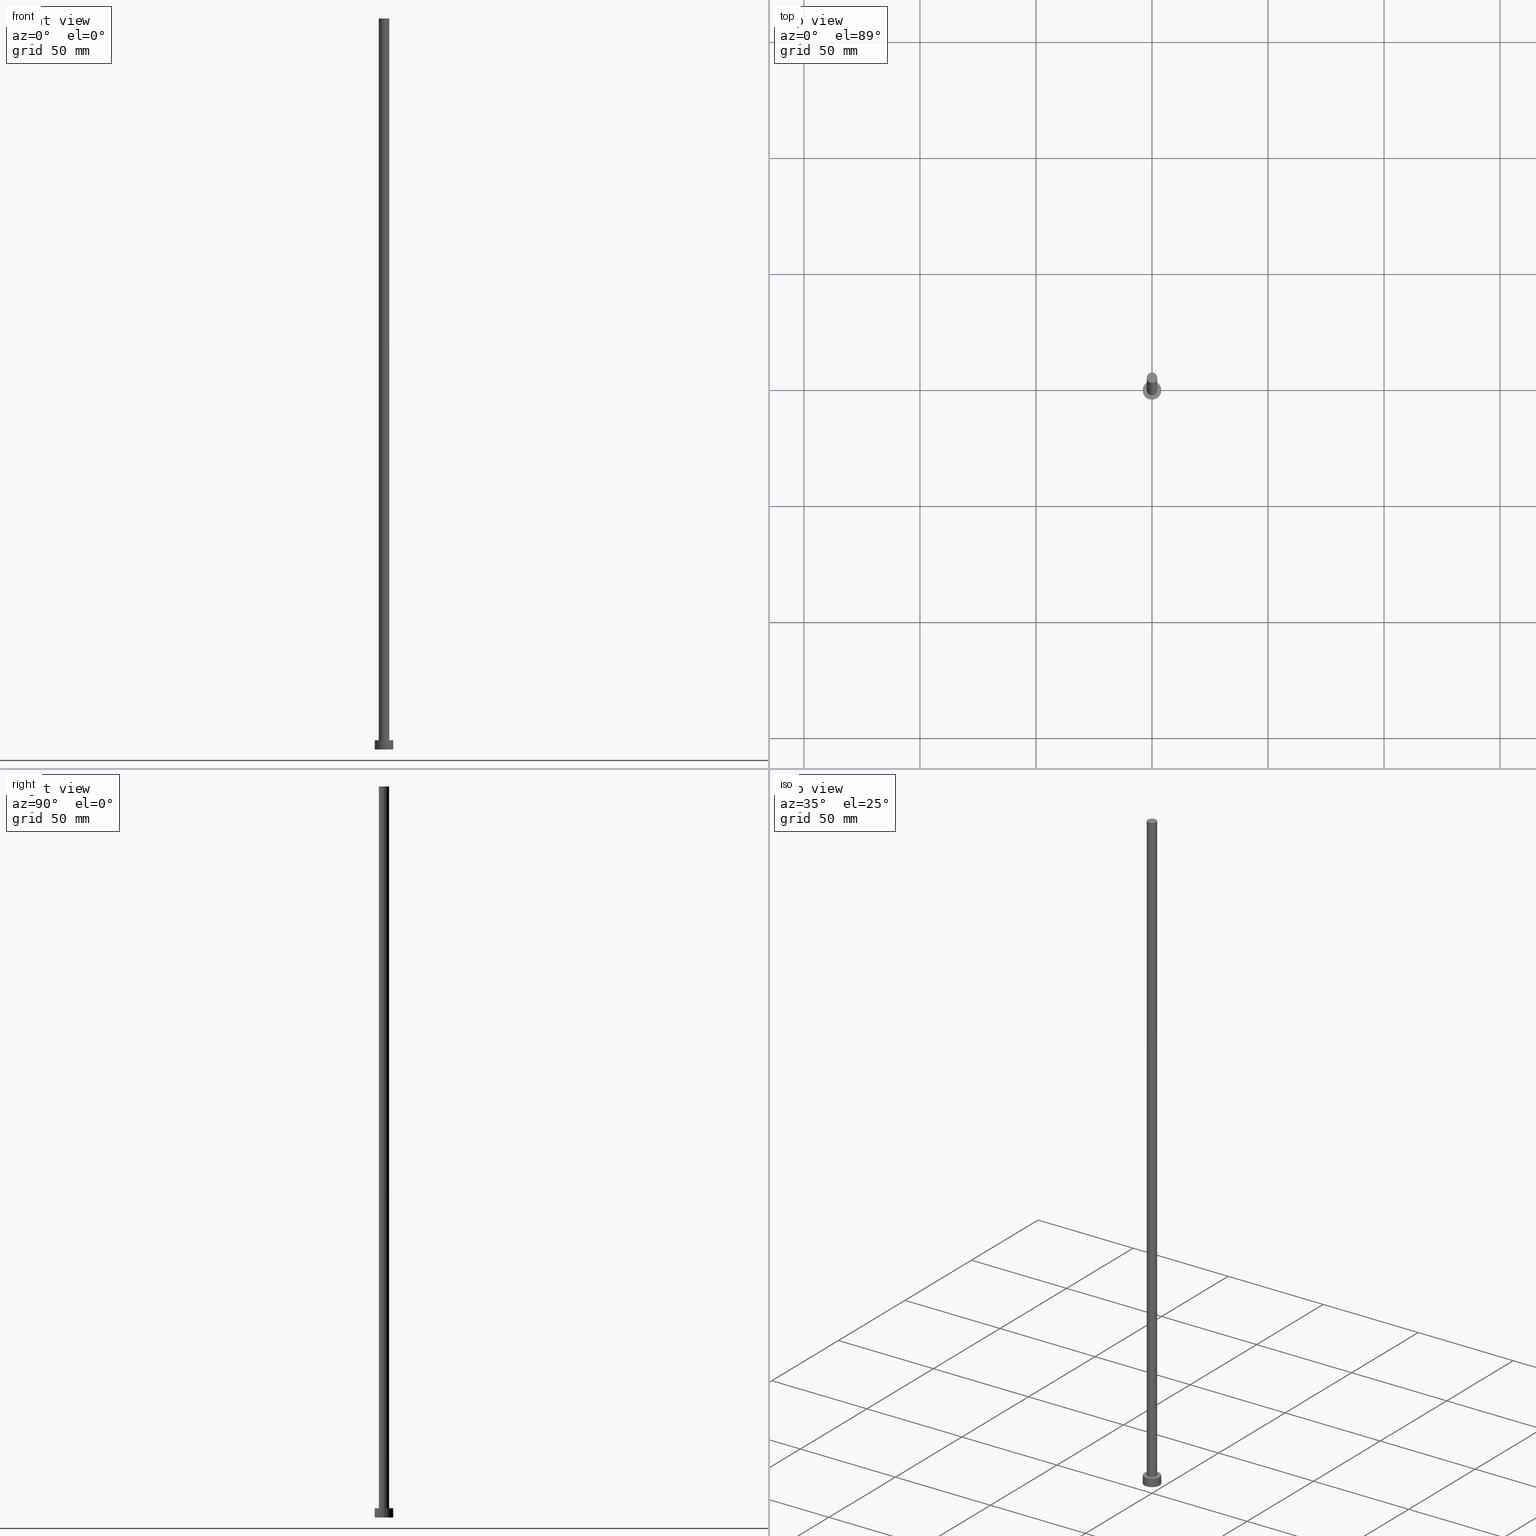
[diagram: canonical four-view strip — front | top / right | iso, engineering-drawing reading convention]
A machine part, canonical four-view strip (front | top / right | iso — engineering-drawing reading convention). The complete STEP part file that produces these views, byte-faithful:
ISO-10303-21;
HEADER;
FILE_DESCRIPTION (( 'STEP AP203' ),
    '1' );
FILE_NAME ('d04b.STEP',
    '2023-02-13T16:20:07',
    ( '' ),
    ( '' ),
    'SwSTEP 2.0',
    'SolidWorks 2019',
    '' );
FILE_SCHEMA (( 'CONFIG_CONTROL_DESIGN' ));
ENDSEC;

DATA;
#1 = CYLINDRICAL_SURFACE ( 'NONE', #97, 4.000000000000000000 ) ;
#2 = DIRECTION ( 'NONE',  ( -0.000000000000000000, -0.000000000000000000, -1.000000000000000000 ) ) ;
#3 = CARTESIAN_POINT ( 'NONE',  ( 0.000000000000000000, 0.000000000000000000, 315.0000000000000000 ) ) ;
#4 = CARTESIAN_POINT ( 'NONE',  ( 4.000000000000000000, 4.898587196589412829E-16, 0.000000000000000000 ) ) ;
#5 = ORIENTED_EDGE ( 'NONE', *, *, #90, .T. ) ;
#6 = AXIS2_PLACEMENT_3D ( 'NONE', #214, #141, #41 ) ;
#7 = AXIS2_PLACEMENT_3D ( 'NONE', #65, #143, #218 ) ;
#8 = LOCAL_TIME ( 17, 20, 7.000000000000000000, #30 ) ;
#9 = PERSON_AND_ORGANIZATION ( #124, #189 ) ;
#10 = APPLICATION_CONTEXT ( 'configuration controlled 3d designs of mechanical parts and assemblies' ) ;
#11 = AXIS2_PLACEMENT_3D ( 'NONE', #33, #223, #221 ) ;
#12 = VECTOR ( 'NONE', #82, 1000.000000000000000 ) ;
#13 = CALENDAR_DATE ( 2023, 13, 2 ) ;
#14 = DIRECTION ( 'NONE',  ( -1.000000000000000000, 0.000000000000000000, 0.000000000000000000 ) ) ;
#15 =( NAMED_UNIT ( * ) PLANE_ANGLE_UNIT ( ) SI_UNIT ( $, .RADIAN. ) );
#16 = DIRECTION ( 'NONE',  ( -1.000000000000000000, 0.000000000000000000, 0.000000000000000000 ) ) ;
#17 = CARTESIAN_POINT ( 'NONE',  ( 0.000000000000000000, 0.000000000000000000, 4.000000000000000000 ) ) ;
#18 = VERTEX_POINT ( 'NONE', #176 ) ;
#19 = CYLINDRICAL_SURFACE ( 'NONE', #190, 2.250000000000000000 ) ;
#20 = PRODUCT_DEFINITION ( 'NEZN�M�', '', #252, #247 ) ;
#21 = EDGE_LOOP ( 'NONE', ( #248, #79, #68, #164 ) ) ;
#22 = DIRECTION ( 'NONE',  ( 1.000000000000000000, 0.000000000000000000, 0.000000000000000000 ) ) ;
#23 = APPROVAL_PERSON_ORGANIZATION ( #191, #87, #206 ) ;
#24 = LINE ( 'NONE', #84, #155 ) ;
#25 = CARTESIAN_POINT ( 'NONE',  ( 0.000000000000000000, 0.000000000000000000, 0.000000000000000000 ) ) ;
#26 = VECTOR ( 'NONE', #93, 1000.000000000000000 ) ;
#27 = DATE_AND_TIME ( #13, #202 ) ;
#28 = ADVANCED_FACE ( 'NONE', ( #51 ), #128, .T. ) ;
#29 = PERSON_AND_ORGANIZATION ( #124, #189 ) ;
#30 = COORDINATED_UNIVERSAL_TIME_OFFSET ( 1, 0, .AHEAD. ) ;
#31 = CARTESIAN_POINT ( 'NONE',  ( 0.000000000000000000, 0.000000000000000000, 315.0000000000000000 ) ) ;
#32 = ADVANCED_FACE ( 'NONE', ( #130 ), #34, .T. ) ;
#33 = CARTESIAN_POINT ( 'NONE',  ( 0.000000000000000000, 0.000000000000000000, 0.000000000000000000 ) ) ;
#34 = PLANE ( 'NONE',  #193 ) ;
#35 = DATE_AND_TIME ( #242, #8 ) ;
#36 = ADVANCED_FACE ( 'NONE', ( #108 ), #192, .T. ) ;
#37 = VERTEX_POINT ( 'NONE', #230 ) ;
#38 = DIRECTION ( 'NONE',  ( 1.000000000000000000, 0.000000000000000000, -0.000000000000000000 ) ) ;
#39 = ORIENTED_EDGE ( 'NONE', *, *, #56, .F. ) ;
#40 = CIRCLE ( 'NONE', #74, 4.000000000000000000 ) ;
#41 = DIRECTION ( 'NONE',  ( 1.000000000000000000, 0.000000000000000000, -0.000000000000000000 ) ) ;
#42 = CARTESIAN_POINT ( 'NONE',  ( -4.000000000000000000, 0.000000000000000000, 0.000000000000000000 ) ) ;
#43 = EDGE_CURVE ( 'NONE', #209, #37, #168, .T. ) ;
#44 = PRODUCT_DEFINITION_SHAPE ( 'NONE', 'NONE',  #20 ) ;
#45 = CC_DESIGN_PERSON_AND_ORGANIZATION_ASSIGNMENT ( #109, #146, ( #94 ) ) ;
#46 = ORIENTED_EDGE ( 'NONE', *, *, #91, .F. ) ;
#47 = DIRECTION ( 'NONE',  ( 1.000000000000000000, 0.000000000000000000, 0.000000000000000000 ) ) ;
#48 = CC_DESIGN_DATE_AND_TIME_ASSIGNMENT ( #49, #203, ( #137 ) ) ;
#49 = DATE_AND_TIME ( #50, #233 ) ;
#50 = CALENDAR_DATE ( 2023, 13, 2 ) ;
#51 = FACE_OUTER_BOUND ( 'NONE', #177, .T. ) ;
#52 = APPROVAL_ROLE ( '' ) ;
#53 = CC_DESIGN_PERSON_AND_ORGANIZATION_ASSIGNMENT ( #9, #243, ( #252 ) ) ;
#54 = EDGE_LOOP ( 'NONE', ( #174, #39 ) ) ;
#55 = COORDINATED_UNIVERSAL_TIME_OFFSET ( 1, 0, .AHEAD. ) ;
#56 = EDGE_CURVE ( 'NONE', #255, #37, #162, .T. ) ;
#57 = APPROVAL_DATE_TIME ( #59, #210 ) ;
#58 = AXIS2_PLACEMENT_3D ( 'NONE', #178, #123, #81 ) ;
#59 = DATE_AND_TIME ( #111, #121 ) ;
#60 = CARTESIAN_POINT ( 'NONE',  ( -2.250000000000000000, 0.000000000000000000, 315.0000000000000000 ) ) ;
#61 = LOCAL_TIME ( 17, 20, 7.000000000000000000, #129 ) ;
#62 = DIRECTION ( 'NONE',  ( 0.000000000000000000, 0.000000000000000000, 1.000000000000000000 ) ) ;
#63 = AXIS2_PLACEMENT_3D ( 'NONE', #3, #201, #47 ) ;
#64 = DIRECTION ( 'NONE',  ( 1.000000000000000000, 0.000000000000000000, 0.000000000000000000 ) ) ;
#65 = CARTESIAN_POINT ( 'NONE',  ( 0.000000000000000000, 0.000000000000000000, 4.000000000000000000 ) ) ;
#66 = VERTEX_POINT ( 'NONE', #244 ) ;
#67 = CARTESIAN_POINT ( 'NONE',  ( 2.250000000000000000, 2.755455298081544285E-16, 315.0000000000000000 ) ) ;
#68 = ORIENTED_EDGE ( 'NONE', *, *, #43, .T. ) ;
#69 =( LENGTH_UNIT ( ) NAMED_UNIT ( * ) SI_UNIT ( .MILLI., .METRE. ) );
#70 = ORIENTED_EDGE ( 'NONE', *, *, #56, .T. ) ;
#71 = PERSON_AND_ORGANIZATION_ROLE ( 'classification_officer' ) ;
#72 = APPROVAL_ROLE ( '' ) ;
#73 = LINE ( 'NONE', #67, #12 ) ;
#74 = AXIS2_PLACEMENT_3D ( 'NONE', #196, #215, #213 ) ;
#75 = EDGE_CURVE ( 'NONE', #66, #255, #73, .T. ) ;
#76 = ADVANCED_FACE ( 'NONE', ( #163 ), #19, .T. ) ;
#77 = EDGE_LOOP ( 'NONE', ( #98, #80 ) ) ;
#78 = AXIS2_PLACEMENT_3D ( 'NONE', #99, #199, #22 ) ;
#79 = ORIENTED_EDGE ( 'NONE', *, *, #90, .F. ) ;
#80 = ORIENTED_EDGE ( 'NONE', *, *, #207, .T. ) ;
#81 = DIRECTION ( 'NONE',  ( 1.000000000000000000, 0.000000000000000000, 0.000000000000000000 ) ) ;
#82 = DIRECTION ( 'NONE',  ( -0.000000000000000000, -0.000000000000000000, -1.000000000000000000 ) ) ;
#83 = CARTESIAN_POINT ( 'NONE',  ( 0.000000000000000000, 0.000000000000000000, 4.000000000000000000 ) ) ;
#84 = CARTESIAN_POINT ( 'NONE',  ( 4.000000000000000000, 4.898587196589412829E-16, 4.000000000000000000 ) ) ;
#85 = ORIENTED_EDGE ( 'NONE', *, *, #240, .F. ) ;
#86 = APPROVAL_DATE_TIME ( #35, #87 ) ;
#87 = APPROVAL ( #224, 'NEUR�EN�' ) ;
#88 = PERSON_AND_ORGANIZATION ( #124, #189 ) ;
#89 = DATE_AND_TIME ( #131, #61 ) ;
#90 = EDGE_CURVE ( 'NONE', #209, #66, #225, .T. ) ;
#91 = EDGE_CURVE ( 'NONE', #115, #216, #24, .T. ) ;
#92 = UNCERTAINTY_MEASURE_WITH_UNIT (LENGTH_MEASURE( 1.000000000000000082E-05 ), #69, 'distance_accuracy_value', 'NONE');
#93 = DIRECTION ( 'NONE',  ( -0.000000000000000000, -0.000000000000000000, -1.000000000000000000 ) ) ;
#94 = PRODUCT ( 'd04b', 'd04b', '', ( #110 ) ) ;
#95 = ADVANCED_FACE ( 'NONE', ( #116, #184 ), #234, .T. ) ;
#96 = EDGE_LOOP ( 'NONE', ( #5, #134 ) ) ;
#97 = AXIS2_PLACEMENT_3D ( 'NONE', #158, #2, #103 ) ;
#98 = ORIENTED_EDGE ( 'NONE', *, *, #136, .T. ) ;
#99 = CARTESIAN_POINT ( 'NONE',  ( 0.000000000000000000, 0.000000000000000000, 0.000000000000000000 ) ) ;
#100 = EDGE_CURVE ( 'NONE', #117, #216, #40, .T. ) ;
#101 = CIRCLE ( 'NONE', #251, 4.000000000000000000 ) ;
#102 = DIRECTION ( 'NONE',  ( 1.000000000000000000, 0.000000000000000000, 0.000000000000000000 ) ) ;
#103 = DIRECTION ( 'NONE',  ( -1.000000000000000000, 0.000000000000000000, 0.000000000000000000 ) ) ;
#104 = CARTESIAN_POINT ( 'NONE',  ( 0.000000000000000000, 0.000000000000000000, 315.0000000000000000 ) ) ;
#105 =( GEOMETRIC_REPRESENTATION_CONTEXT ( 3 ) GLOBAL_UNCERTAINTY_ASSIGNED_CONTEXT ( ( #92 ) ) GLOBAL_UNIT_ASSIGNED_CONTEXT ( ( #69, #15, #222 ) ) REPRESENTATION_CONTEXT ( 'NONE', 'WORKASPACE' ) );
#106 = APPLICATION_PROTOCOL_DEFINITION ( 'international standard', 'config_control_design', 1994, #10 ) ;
#107 = PERSON_AND_ORGANIZATION_ROLE ( 'creator' ) ;
#108 = FACE_OUTER_BOUND ( 'NONE', #219, .T. ) ;
#109 = PERSON_AND_ORGANIZATION ( #124, #189 ) ;
#110 = MECHANICAL_CONTEXT ( 'NONE', #10, 'mechanical' ) ;
#111 = CALENDAR_DATE ( 2023, 13, 2 ) ;
#112 = ORIENTED_EDGE ( 'NONE', *, *, #126, .F. ) ;
#113 = CARTESIAN_POINT ( 'NONE',  ( 0.000000000000000000, 0.000000000000000000, 4.000000000000000000 ) ) ;
#114 = AXIS2_PLACEMENT_3D ( 'NONE', #160, #182, #64 ) ;
#115 = VERTEX_POINT ( 'NONE', #232 ) ;
#116 = FACE_BOUND ( 'NONE', #54, .T. ) ;
#117 = VERTEX_POINT ( 'NONE', #42 ) ;
#118 = VECTOR ( 'NONE', #140, 1000.000000000000000 ) ;
#119 = DIRECTION ( 'NONE',  ( -1.000000000000000000, 0.000000000000000000, 0.000000000000000000 ) ) ;
#120 = AXIS2_PLACEMENT_3D ( 'NONE', #113, #171, #135 ) ;
#121 = LOCAL_TIME ( 17, 20, 7.000000000000000000, #55 ) ;
#122 = CARTESIAN_POINT ( 'NONE',  ( 2.250000000000000000, 2.755455298081544285E-16, 4.000000000000000000 ) ) ;
#123 = DIRECTION ( 'NONE',  ( 0.000000000000000000, 0.000000000000000000, 1.000000000000000000 ) ) ;
#124 = PERSON ( 'NEUR�EN�', 'NEUR�EN�', 'NEUR�EN�', ('NEUR�EN�'), ('NEUR�EN�'), ('NEUR�EN�') ) ;
#125 = PERSON_AND_ORGANIZATION ( #124, #189 ) ;
#126 = EDGE_CURVE ( 'NONE', #216, #117, #246, .T. ) ;
#127 = APPROVAL_DATE_TIME ( #89, #139 ) ;
#128 = CYLINDRICAL_SURFACE ( 'NONE', #217, 4.000000000000000000 ) ;
#129 = COORDINATED_UNIVERSAL_TIME_OFFSET ( 1, 0, .AHEAD. ) ;
#130 = FACE_OUTER_BOUND ( 'NONE', #96, .T. ) ;
#131 = CALENDAR_DATE ( 2023, 13, 2 ) ;
#132 = SHAPE_DEFINITION_REPRESENTATION ( #44, #208 ) ;
#133 = CC_DESIGN_APPROVAL ( #139, ( #20 ) ) ;
#134 = ORIENTED_EDGE ( 'NONE', *, *, #144, .T. ) ;
#135 = DIRECTION ( 'NONE',  ( 1.000000000000000000, 0.000000000000000000, 0.000000000000000000 ) ) ;
#136 = EDGE_CURVE ( 'NONE', #18, #115, #101, .T. ) ;
#137 = SECURITY_CLASSIFICATION ( '', '', #167 ) ;
#138 = DIRECTION ( 'NONE',  ( 0.000000000000000000, 0.000000000000000000, 1.000000000000000000 ) ) ;
#139 = APPROVAL ( #239, 'NEUR�EN�' ) ;
#140 = DIRECTION ( 'NONE',  ( -0.000000000000000000, -0.000000000000000000, -1.000000000000000000 ) ) ;
#141 = DIRECTION ( 'NONE',  ( 0.000000000000000000, 0.000000000000000000, 1.000000000000000000 ) ) ;
#142 = CIRCLE ( 'NONE', #58, 2.250000000000000000 ) ;
#143 = DIRECTION ( 'NONE',  ( 0.000000000000000000, 0.000000000000000000, 1.000000000000000000 ) ) ;
#144 = EDGE_CURVE ( 'NONE', #66, #209, #142, .T. ) ;
#145 = LINE ( 'NONE', #235, #118 ) ;
#146 = PERSON_AND_ORGANIZATION_ROLE ( 'design_owner' ) ;
#147 = ORIENTED_EDGE ( 'NONE', *, *, #100, .T. ) ;
#148 = COORDINATED_UNIVERSAL_TIME_OFFSET ( 1, 0, .AHEAD. ) ;
#149 = APPLICATION_CONTEXT ( 'configuration controlled 3d designs of mechanical parts and assemblies' ) ;
#150 = ORIENTED_EDGE ( 'NONE', *, *, #43, .F. ) ;
#151 = ORIENTED_EDGE ( 'NONE', *, *, #240, .T. ) ;
#152 = CIRCLE ( 'NONE', #7, 2.250000000000000000 ) ;
#153 = CC_DESIGN_APPROVAL ( #87, ( #252 ) ) ;
#154 = EDGE_LOOP ( 'NONE', ( #238, #112 ) ) ;
#155 = VECTOR ( 'NONE', #237, 1000.000000000000000 ) ;
#156 = DIRECTION ( 'NONE',  ( 0.000000000000000000, 0.000000000000000000, 1.000000000000000000 ) ) ;
#157 = DIRECTION ( 'NONE',  ( -0.000000000000000000, -0.000000000000000000, -1.000000000000000000 ) ) ;
#158 = CARTESIAN_POINT ( 'NONE',  ( 0.000000000000000000, 0.000000000000000000, 4.000000000000000000 ) ) ;
#159 = CC_DESIGN_SECURITY_CLASSIFICATION ( #137, ( #252 ) ) ;
#160 = CARTESIAN_POINT ( 'NONE',  ( 0.000000000000000000, 0.000000000000000000, 4.000000000000000000 ) ) ;
#161 = CARTESIAN_POINT ( 'NONE',  ( -2.250000000000000000, 0.000000000000000000, 315.0000000000000000 ) ) ;
#162 = CIRCLE ( 'NONE', #120, 2.250000000000000000 ) ;
#163 = FACE_OUTER_BOUND ( 'NONE', #21, .T. ) ;
#164 = ORIENTED_EDGE ( 'NONE', *, *, #249, .T. ) ;
#165 = ORIENTED_EDGE ( 'NONE', *, *, #75, .T. ) ;
#166 = PERSON_AND_ORGANIZATION ( #124, #189 ) ;
#167 = SECURITY_CLASSIFICATION_LEVEL ( 'unclassified' ) ;
#168 = LINE ( 'NONE', #60, #26 ) ;
#169 = APPLICATION_PROTOCOL_DEFINITION ( 'international standard', 'config_control_design', 1994, #149 ) ;
#170 = CC_DESIGN_PERSON_AND_ORGANIZATION_ASSIGNMENT ( #125, #107, ( #20 ) ) ;
#171 = DIRECTION ( 'NONE',  ( 0.000000000000000000, 0.000000000000000000, 1.000000000000000000 ) ) ;
#172 = ADVANCED_FACE ( 'NONE', ( #181 ), #1, .T. ) ;
#173 = ADVANCED_FACE ( 'NONE', ( #200 ), #236, .F. ) ;
#174 = ORIENTED_EDGE ( 'NONE', *, *, #249, .F. ) ;
#175 = AXIS2_PLACEMENT_3D ( 'NONE', #25, #138, #183 ) ;
#176 = CARTESIAN_POINT ( 'NONE',  ( -4.000000000000000000, 0.000000000000000000, 4.000000000000000000 ) ) ;
#177 = EDGE_LOOP ( 'NONE', ( #46, #254, #151, #147 ) ) ;
#178 = CARTESIAN_POINT ( 'NONE',  ( 0.000000000000000000, 0.000000000000000000, 315.0000000000000000 ) ) ;
#179 = CLOSED_SHELL ( 'NONE', ( #36, #172, #28, #95, #173, #76, #32 ) ) ;
#180 = CC_DESIGN_APPROVAL ( #210, ( #137 ) ) ;
#181 = FACE_OUTER_BOUND ( 'NONE', #197, .T. ) ;
#182 = DIRECTION ( 'NONE',  ( 0.000000000000000000, 0.000000000000000000, 1.000000000000000000 ) ) ;
#183 = DIRECTION ( 'NONE',  ( 1.000000000000000000, 0.000000000000000000, -0.000000000000000000 ) ) ;
#184 = FACE_OUTER_BOUND ( 'NONE', #77, .T. ) ;
#185 = PERSON_AND_ORGANIZATION_ROLE ( 'creator' ) ;
#186 = APPROVAL_STATUS ( 'not_yet_approved' ) ;
#187 = MANIFOLD_SOLID_BREP ( 'P�idat vysunut�m3', #179 ) ;
#188 = DATE_TIME_ROLE ( 'creation_date' ) ;
#189 = ORGANIZATION ( 'NEUR�EN�', 'NEUR�EN�', '' ) ;
#190 = AXIS2_PLACEMENT_3D ( 'NONE', #104, #198, #119 ) ;
#191 = PERSON_AND_ORGANIZATION ( #124, #189 ) ;
#192 = CYLINDRICAL_SURFACE ( 'NONE', #229, 2.250000000000000000 ) ;
#193 = AXIS2_PLACEMENT_3D ( 'NONE', #31, #156, #38 ) ;
#194 = PRODUCT_RELATED_PRODUCT_CATEGORY ( 'detail', '', ( #94 ) ) ;
#195 = ORIENTED_EDGE ( 'NONE', *, *, #144, .F. ) ;
#196 = CARTESIAN_POINT ( 'NONE',  ( 0.000000000000000000, 0.000000000000000000, 0.000000000000000000 ) ) ;
#197 = EDGE_LOOP ( 'NONE', ( #211, #250, #205, #85 ) ) ;
#198 = DIRECTION ( 'NONE',  ( -0.000000000000000000, -0.000000000000000000, -1.000000000000000000 ) ) ;
#199 = DIRECTION ( 'NONE',  ( 0.000000000000000000, 0.000000000000000000, 1.000000000000000000 ) ) ;
#200 = FACE_OUTER_BOUND ( 'NONE', #154, .T. ) ;
#201 = DIRECTION ( 'NONE',  ( 0.000000000000000000, 0.000000000000000000, 1.000000000000000000 ) ) ;
#202 = LOCAL_TIME ( 17, 20, 7.000000000000000000, #204 ) ;
#203 = DATE_TIME_ROLE ( 'classification_date' ) ;
#204 = COORDINATED_UNIVERSAL_TIME_OFFSET ( 1, 0, .AHEAD. ) ;
#205 = ORIENTED_EDGE ( 'NONE', *, *, #126, .T. ) ;
#206 = APPROVAL_ROLE ( '' ) ;
#207 = EDGE_CURVE ( 'NONE', #115, #18, #226, .T. ) ;
#208 = ADVANCED_BREP_SHAPE_REPRESENTATION ( 'd04b', ( #187, #11 ), #105 ) ;
#209 = VERTEX_POINT ( 'NONE', #161 ) ;
#210 = APPROVAL ( #186, 'NEUR�EN�' ) ;
#211 = ORIENTED_EDGE ( 'NONE', *, *, #207, .F. ) ;
#212 = APPROVAL_PERSON_ORGANIZATION ( #29, #210, #72 ) ;
#213 = DIRECTION ( 'NONE',  ( 1.000000000000000000, 0.000000000000000000, 0.000000000000000000 ) ) ;
#214 = CARTESIAN_POINT ( 'NONE',  ( 0.000000000000000000, 0.000000000000000000, 4.000000000000000000 ) ) ;
#215 = DIRECTION ( 'NONE',  ( 0.000000000000000000, 0.000000000000000000, 1.000000000000000000 ) ) ;
#216 = VERTEX_POINT ( 'NONE', #4 ) ;
#217 = AXIS2_PLACEMENT_3D ( 'NONE', #17, #157, #16 ) ;
#218 = DIRECTION ( 'NONE',  ( 1.000000000000000000, 0.000000000000000000, 0.000000000000000000 ) ) ;
#219 = EDGE_LOOP ( 'NONE', ( #195, #165, #70, #150 ) ) ;
#220 = CC_DESIGN_PERSON_AND_ORGANIZATION_ASSIGNMENT ( #166, #185, ( #252 ) ) ;
#221 = DIRECTION ( 'NONE',  ( 1.000000000000000000, 0.000000000000000000, 0.000000000000000000 ) ) ;
#222 =( NAMED_UNIT ( * ) SI_UNIT ( $, .STERADIAN. ) SOLID_ANGLE_UNIT ( ) );
#223 = DIRECTION ( 'NONE',  ( 0.000000000000000000, 0.000000000000000000, 1.000000000000000000 ) ) ;
#224 = APPROVAL_STATUS ( 'not_yet_approved' ) ;
#225 = CIRCLE ( 'NONE', #63, 2.250000000000000000 ) ;
#226 = CIRCLE ( 'NONE', #114, 4.000000000000000000 ) ;
#227 = CC_DESIGN_PERSON_AND_ORGANIZATION_ASSIGNMENT ( #88, #71, ( #137 ) ) ;
#228 = DIRECTION ( 'NONE',  ( -0.000000000000000000, -0.000000000000000000, -1.000000000000000000 ) ) ;
#229 = AXIS2_PLACEMENT_3D ( 'NONE', #231, #228, #14 ) ;
#230 = CARTESIAN_POINT ( 'NONE',  ( -2.250000000000000000, 0.000000000000000000, 4.000000000000000000 ) ) ;
#231 = CARTESIAN_POINT ( 'NONE',  ( 0.000000000000000000, 0.000000000000000000, 315.0000000000000000 ) ) ;
#232 = CARTESIAN_POINT ( 'NONE',  ( 4.000000000000000000, 4.898587196589412829E-16, 4.000000000000000000 ) ) ;
#233 = LOCAL_TIME ( 17, 20, 7.000000000000000000, #148 ) ;
#234 = PLANE ( 'NONE',  #6 ) ;
#235 = CARTESIAN_POINT ( 'NONE',  ( -4.000000000000000000, 0.000000000000000000, 4.000000000000000000 ) ) ;
#236 = PLANE ( 'NONE',  #175 ) ;
#237 = DIRECTION ( 'NONE',  ( -0.000000000000000000, -0.000000000000000000, -1.000000000000000000 ) ) ;
#238 = ORIENTED_EDGE ( 'NONE', *, *, #100, .F. ) ;
#239 = APPROVAL_STATUS ( 'not_yet_approved' ) ;
#240 = EDGE_CURVE ( 'NONE', #18, #117, #145, .T. ) ;
#241 = APPROVAL_PERSON_ORGANIZATION ( #245, #139, #52 ) ;
#242 = CALENDAR_DATE ( 2023, 13, 2 ) ;
#243 = PERSON_AND_ORGANIZATION_ROLE ( 'design_supplier' ) ;
#244 = CARTESIAN_POINT ( 'NONE',  ( 2.250000000000000000, 2.755455298081544285E-16, 315.0000000000000000 ) ) ;
#245 = PERSON_AND_ORGANIZATION ( #124, #189 ) ;
#246 = CIRCLE ( 'NONE', #78, 4.000000000000000000 ) ;
#247 = DESIGN_CONTEXT ( 'detailed design', #149, 'design' ) ;
#248 = ORIENTED_EDGE ( 'NONE', *, *, #75, .F. ) ;
#249 = EDGE_CURVE ( 'NONE', #37, #255, #152, .T. ) ;
#250 = ORIENTED_EDGE ( 'NONE', *, *, #91, .T. ) ;
#251 = AXIS2_PLACEMENT_3D ( 'NONE', #83, #62, #102 ) ;
#252 = PRODUCT_DEFINITION_FORMATION_WITH_SPECIFIED_SOURCE ( 'LIBOVOLN�', '', #94, .NOT_KNOWN. ) ;
#253 = CC_DESIGN_DATE_AND_TIME_ASSIGNMENT ( #27, #188, ( #20 ) ) ;
#254 = ORIENTED_EDGE ( 'NONE', *, *, #136, .F. ) ;
#255 = VERTEX_POINT ( 'NONE', #122 ) ;
ENDSEC;
END-ISO-10303-21;
